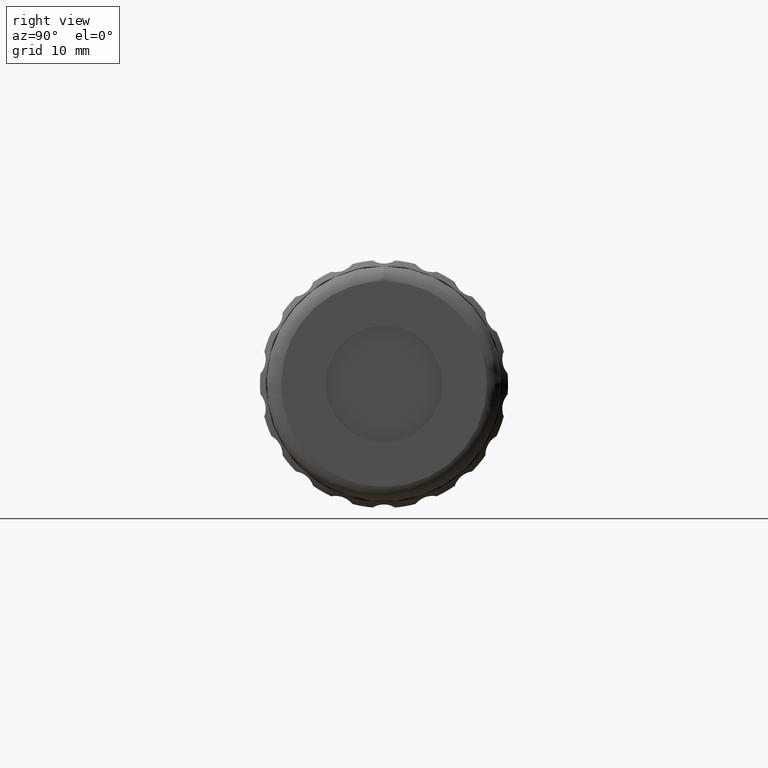
[diagram: clean part render]
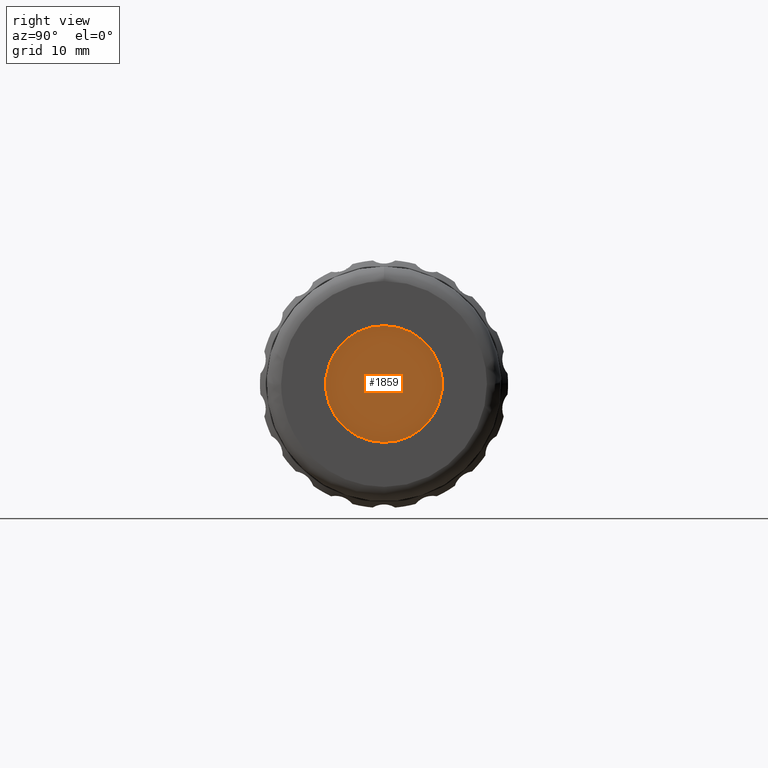
[diagram: same view with one face highlighted and labeled with its STEP entity id]
A machine part, right view. The second image highlights one B-rep face of the part: STEP entity #1859.
In plain terms, the highlighted planar face has unit normal (1, 0, 0).
Its self-contained STEP definition (entity closure, byte-faithful):
#106 = AXIS2_PLACEMENT_3D ( 'NONE', #453, #1632, #121 ) ;
#121 = DIRECTION ( 'NONE',  ( 0.000000000000000000, 0.000000000000000000, -1.000000000000000000 ) ) ;
#254 = CARTESIAN_POINT ( 'NONE',  ( 94.33704000000000178, 46.02096199999999726, 0.000000000000000000 ) ) ;
#313 = EDGE_CURVE ( 'NONE', #626, #626, #1103, .T. ) ;
#453 = CARTESIAN_POINT ( 'NONE',  ( 94.33704000000000178, 46.02096199999999726, 4.350675744370770171E-31 ) ) ;
#536 = AXIS2_PLACEMENT_3D ( 'NONE', #254, #1298, #1805 ) ;
#626 = VERTEX_POINT ( 'NONE', #1866 ) ;
#896 = ORIENTED_EDGE ( 'NONE', *, *, #313, .T. ) ;
#1103 = CIRCLE ( 'NONE', #106, 8.000000000000000000 ) ;
#1298 = DIRECTION ( 'NONE',  ( 1.000000000000000000, 0.000000000000000000, -0.000000000000000000 ) ) ;
#1632 = DIRECTION ( 'NONE',  ( 1.000000000000000000, 0.000000000000000000, 0.000000000000000000 ) ) ;
#1805 = DIRECTION ( 'NONE',  ( -0.000000000000000000, 0.000000000000000000, -1.000000000000000000 ) ) ;
#1816 = PLANE ( 'NONE',  #536 ) ;
#1829 = FACE_OUTER_BOUND ( 'NONE', #1955, .T. ) ;
#1859 = ADVANCED_FACE ( 'NONE', ( #1829 ), #1816, .T. ) ;
#1866 = CARTESIAN_POINT ( 'NONE',  ( 94.33704000000000178, 46.02096199999999726, -8.000000000000000000 ) ) ;
#1955 = EDGE_LOOP ( 'NONE', ( #896 ) ) ;